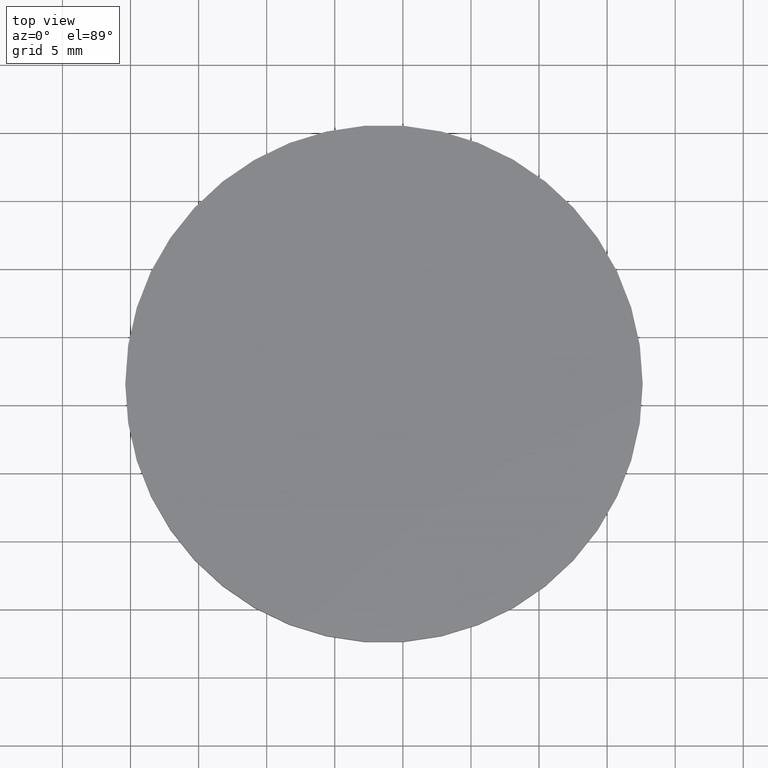
[diagram: clean part render]
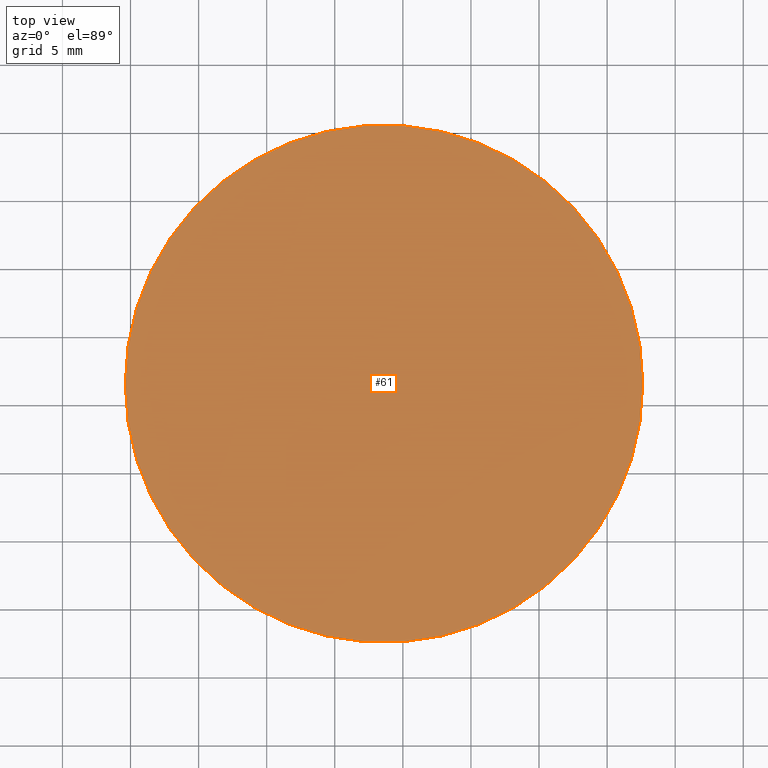
[diagram: same view with one face highlighted and labeled with its STEP entity id]
A machine part, top view. The second image highlights one B-rep face of the part: STEP entity #61.
In plain terms, the highlighted planar face has unit normal (0, 0, 1).
Its self-contained STEP definition (entity closure, byte-faithful):
#2 = FACE_OUTER_BOUND ( 'NONE', #26, .T. ) ;
#8 = EDGE_CURVE ( 'NONE', #49, #131, #66, .T. ) ;
#26 = EDGE_LOOP ( 'NONE', ( #92, #107 ) ) ;
#27 = DIRECTION ( 'NONE',  ( 1.000000000000000000, 0.0000000000000000000, 0.0000000000000000000 ) ) ;
#36 = DIRECTION ( 'NONE',  ( 0.0000000000000000000, 0.0000000000000000000, 1.000000000000000000 ) ) ;
#48 = CARTESIAN_POINT ( 'NONE',  ( 89.61498394228370000, 61.56557006861266500, 2.299999999999999800 ) ) ;
#49 = VERTEX_POINT ( 'NONE', #48 ) ;
#50 = CARTESIAN_POINT ( 'NONE',  ( 108.6149839422837000, 61.56557006861266500, 2.299999999999999800 ) ) ;
#57 = AXIS2_PLACEMENT_3D ( 'NONE', #125, #62, #133 ) ;
#58 = AXIS2_PLACEMENT_3D ( 'NONE', #117, #36, #27 ) ;
#61 = ADVANCED_FACE ( 'NONE', ( #2 ), #136, .T. ) ;
#62 = DIRECTION ( 'NONE',  ( 0.0000000000000000000, 0.0000000000000000000, 1.000000000000000000 ) ) ;
#66 = CIRCLE ( 'NONE', #58, 18.99999999999998900 ) ;
#86 = CIRCLE ( 'NONE', #95, 18.99999999999998900 ) ;
#91 = CARTESIAN_POINT ( 'NONE',  ( 127.6149839422836900, 61.56557006861266500, 2.299999999999999800 ) ) ;
#92 = ORIENTED_EDGE ( 'NONE', *, *, #8, .T. ) ;
#95 = AXIS2_PLACEMENT_3D ( 'NONE', #50, #123, #115 ) ;
#107 = ORIENTED_EDGE ( 'NONE', *, *, #108, .T. ) ;
#108 = EDGE_CURVE ( 'NONE', #131, #49, #86, .T. ) ;
#115 = DIRECTION ( 'NONE',  ( 1.000000000000000000, 0.0000000000000000000, 0.0000000000000000000 ) ) ;
#117 = CARTESIAN_POINT ( 'NONE',  ( 108.6149839422837000, 61.56557006861266500, 2.299999999999999800 ) ) ;
#123 = DIRECTION ( 'NONE',  ( 0.0000000000000000000, 0.0000000000000000000, 1.000000000000000000 ) ) ;
#125 = CARTESIAN_POINT ( 'NONE',  ( 108.6149839422837000, 61.56557006861266500, 2.299999999999999800 ) ) ;
#131 = VERTEX_POINT ( 'NONE', #91 ) ;
#133 = DIRECTION ( 'NONE',  ( 1.000000000000000000, 0.0000000000000000000, -0.0000000000000000000 ) ) ;
#136 = PLANE ( 'NONE',  #57 ) ;